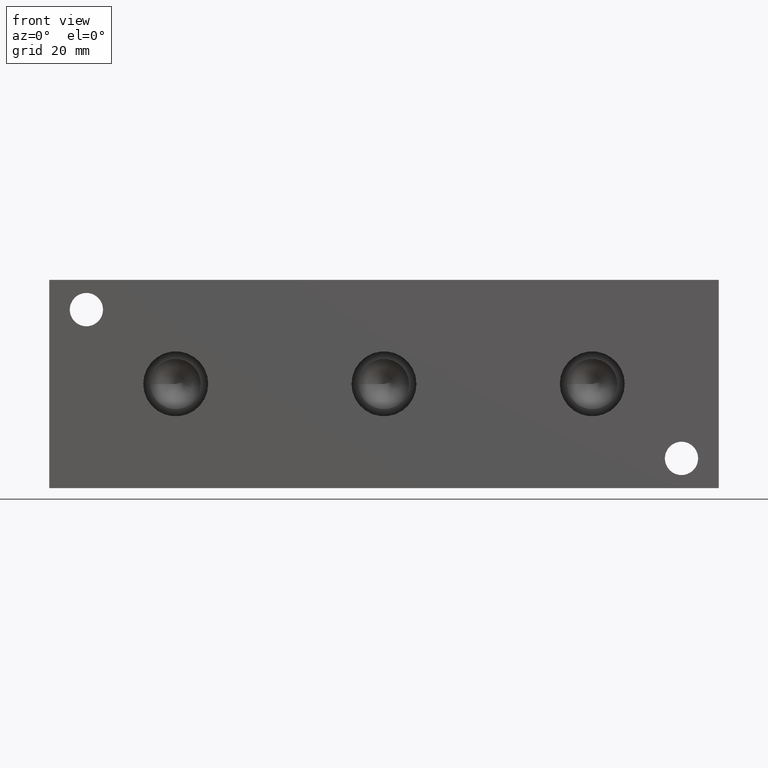
[diagram: clean part render]
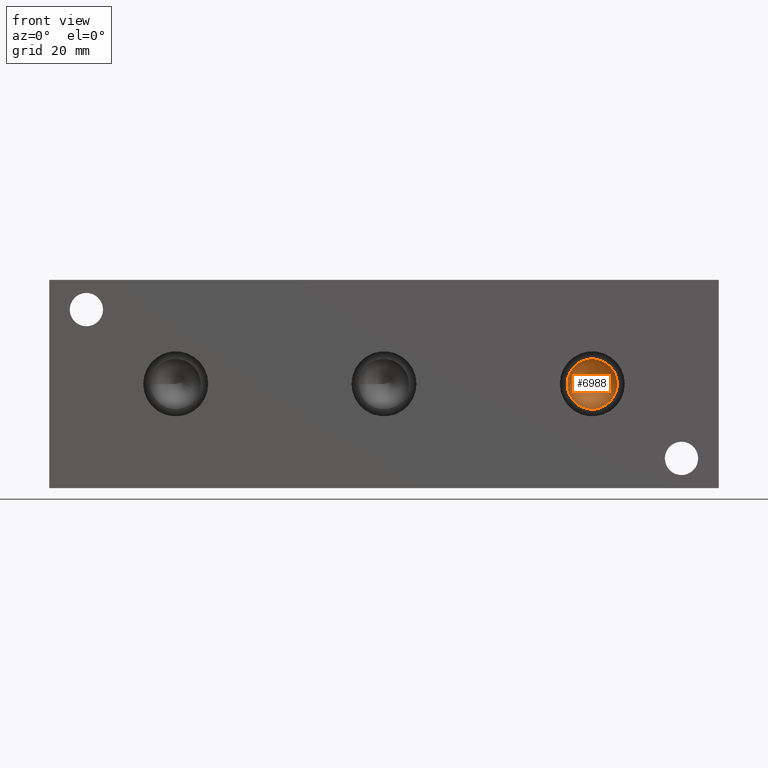
[diagram: same view with one face highlighted and labeled with its STEP entity id]
A machine part, front view. The second image highlights one B-rep face of the part: STEP entity #6988.
In plain terms, the highlighted conical surface has half-angle 60 deg.
Its self-contained STEP definition (entity closure, byte-faithful):
#16=CONICAL_SURFACE('',#7289,2.6797,1.0471975511966);
#80=CIRCLE('',#7290,5.3594);
#81=CIRCLE('',#7291,5.3594);
#704=FACE_OUTER_BOUND('',#1094,.T.);
#1094=EDGE_LOOP('',(#6133,#6134,#6135,#6136));
#1794=LINE('',#11902,#2479);
#2479=VECTOR('',#8534,2.6797);
#3329=VERTEX_POINT('',#11898);
#3330=VERTEX_POINT('',#11899);
#3331=VERTEX_POINT('',#11901);
#4278=EDGE_CURVE('',#3329,#3330,#80,.T.);
#4279=EDGE_CURVE('',#3330,#3331,#1794,.T.);
#4280=EDGE_CURVE('',#3330,#3329,#81,.T.);
#6133=ORIENTED_EDGE('',*,*,#4278,.T.);
#6134=ORIENTED_EDGE('',*,*,#4279,.T.);
#6135=ORIENTED_EDGE('',*,*,#4279,.F.);
#6136=ORIENTED_EDGE('',*,*,#4280,.T.);
#6988=ADVANCED_FACE('',(#704),#16,.F.);
#7289=AXIS2_PLACEMENT_3D('',#11897,#8530,#8531);
#7290=AXIS2_PLACEMENT_3D('',#11900,#8532,#8533);
#7291=AXIS2_PLACEMENT_3D('',#11903,#8535,#8536);
#8530=DIRECTION('center_axis',(0.,-1.,0.));
#8531=DIRECTION('ref_axis',(1.,0.,0.));
#8532=DIRECTION('center_axis',(0.,-1.,0.));
#8533=DIRECTION('ref_axis',(1.,0.,0.));
#8534=DIRECTION('',(0.866025403784439,0.5,1.06057523872491E-16));
#8535=DIRECTION('center_axis',(0.,-1.,0.));
#8536=DIRECTION('ref_axis',(1.,0.,0.));
#11897=CARTESIAN_POINT('Origin',(115.8748,13.2611555163474,22.225));
#11898=CARTESIAN_POINT('',(121.2342,11.71403,22.225));
#11899=CARTESIAN_POINT('',(110.5154,11.71403,22.225));
#11900=CARTESIAN_POINT('Origin',(115.8748,11.71403,22.225));
#11901=CARTESIAN_POINT('',(115.8748,14.8082810326949,22.225));
#11902=CARTESIAN_POINT('',(113.1951,13.2611555163474,22.225));
#11903=CARTESIAN_POINT('Origin',(115.8748,11.71403,22.225));